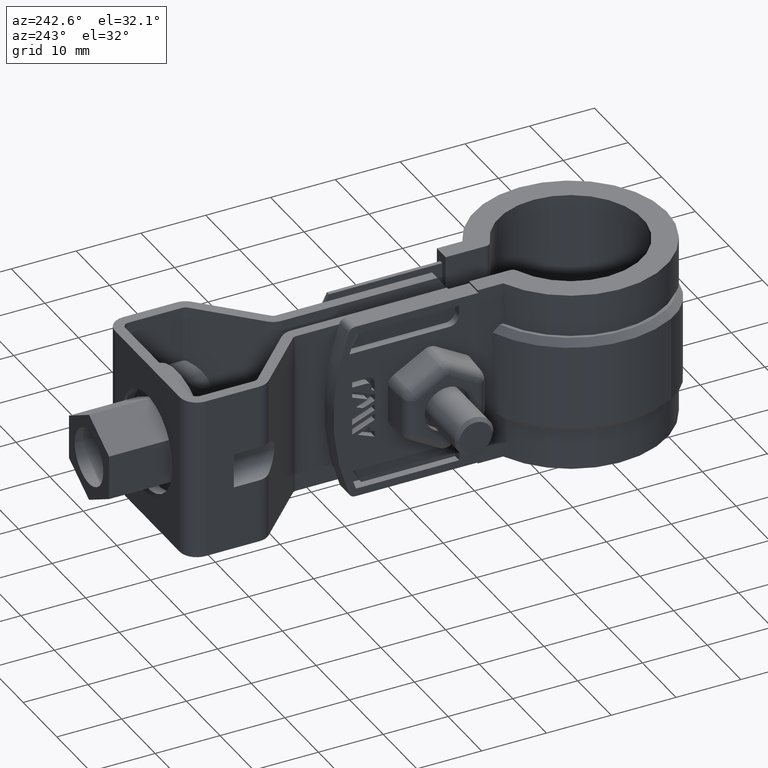
[diagram: clean part render]
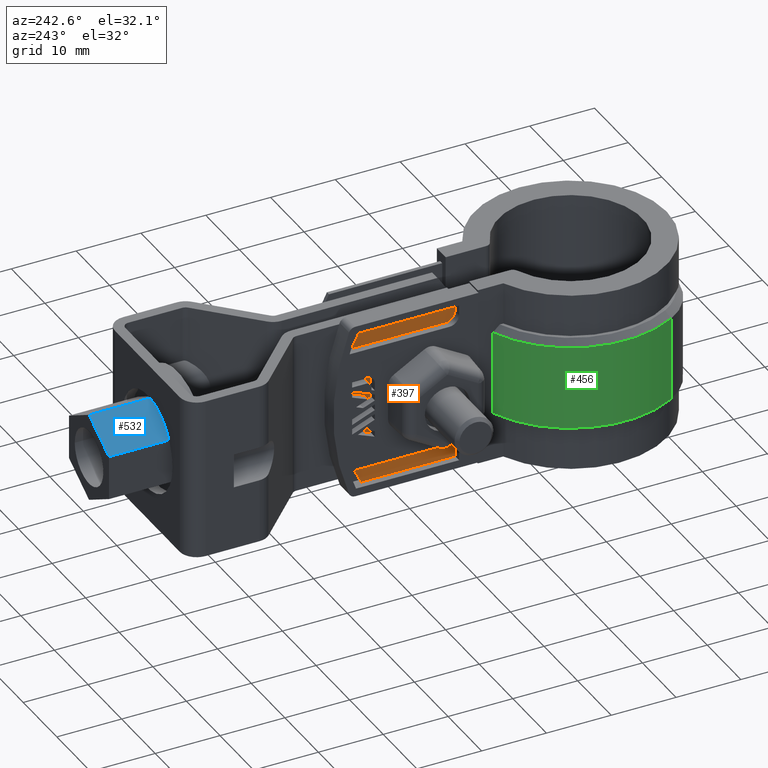
[diagram: same view with three faces highlighted in distinct colors, each labeled with its STEP entity id]
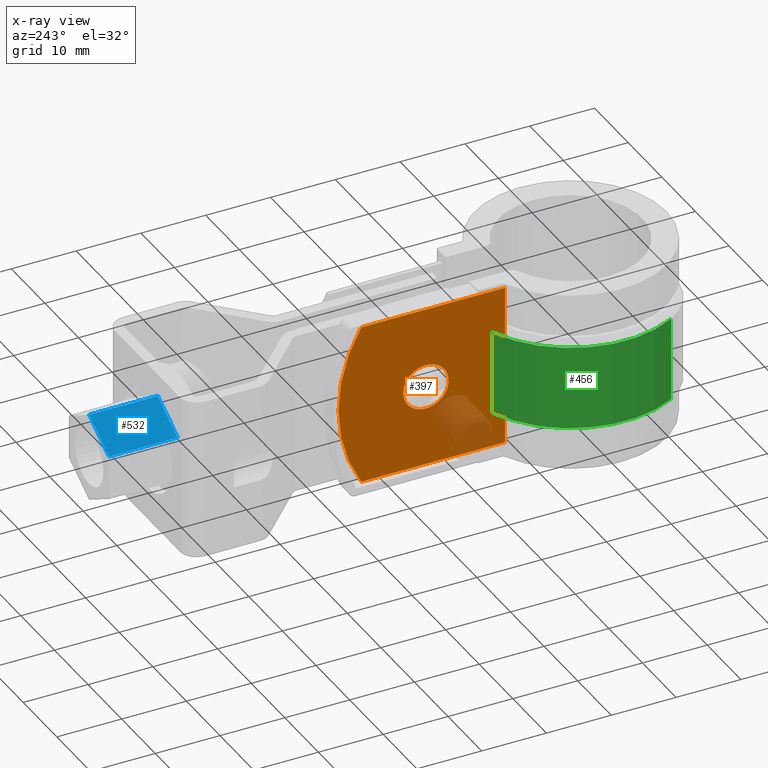
[diagram: x-ray of the same camera — body ghosted, the three highlighted faces saturated]
A machine part, auxiliary view with three faces highlighted in distinct colors.
The next image is the same camera in x-ray (body ghosted, the three faces saturated) — at least one of them is partly hidden behind the body in this view.
Their STEP definitions:

[orange] entity #397 — the highlighted planar face has unit normal (1, -0, 0).
#397 = ADVANCED_FACE( '', ( #761, #762 ), #763, .F. );
#761 = FACE_BOUND( '', #1605, .T. );
#762 = FACE_OUTER_BOUND( '', #1606, .T. );
#763 = PLANE( '', #1607 );
#1605 = EDGE_LOOP( '', ( #3385 ) );
#1606 = EDGE_LOOP( '', ( #3386, #3387, #3388, #3389, #3390, #3391 ) );
#1607 = AXIS2_PLACEMENT_3D( '', #3392, #3393, #3394 );
#3385 = ORIENTED_EDGE( '', *, *, #6421, .F. );
#3386 = ORIENTED_EDGE( '', *, *, #6419, .F. );
#3387 = ORIENTED_EDGE( '', *, *, #6423, .F. );
#3388 = ORIENTED_EDGE( '', *, *, #6311, .F. );
#3389 = ORIENTED_EDGE( '', *, *, #6360, .F. );
#3390 = ORIENTED_EDGE( '', *, *, #6352, .T. );
#3391 = ORIENTED_EDGE( '', *, *, #6422, .F. );
#3392 = CARTESIAN_POINT( '', ( -5.10000000000000, 38.4580146622353, 0.000000000000000 ) );
#3393 = DIRECTION( '', ( 1.00000000000000, -6.12303176911189E-017, 0.000000000000000 ) );
#3394 = DIRECTION( '', ( -6.12303176911189E-017, -1.00000000000000, 0.000000000000000 ) );
#6311 = EDGE_CURVE( '', #7236, #7239, #7240, .T. );
#6352 = EDGE_CURVE( '', #7312, #7310, #7313, .T. );
#6360 = EDGE_CURVE( '', #7312, #7236, #7326, .T. );
#6419 = EDGE_CURVE( '', #7416, #7414, #7418, .T. );
#6421 = EDGE_CURVE( '', #7421, #7421, #7422, .F. );
#6422 = EDGE_CURVE( '', #7414, #7310, #7423, .T. );
#6423 = EDGE_CURVE( '', #7239, #7416, #7424, .T. );
#7236 = VERTEX_POINT( '', #8847 );
#7239 = VERTEX_POINT( '', #8851 );
#7240 = LINE( '', #8852, #8853 );
#7310 = VERTEX_POINT( '', #9178 );
#7312 = VERTEX_POINT( '', #9180 );
#7313 = LINE( '', #9181, #9182 );
#7326 = CIRCLE( '', #9198, 24.0000000000000 );
#7414 = VERTEX_POINT( '', #9597 );
#7416 = VERTEX_POINT( '', #9612 );
#7418 = B_SPLINE_CURVE_WITH_KNOTS( '', 3, ( #9627, #9628, #9629, #9630, #9631, #9632, #9633, #9634, #9635, #9636, #9637, #9638, #9639 ), .UNSPECIFIED., .F., .F., ( 4, 2, 2, 1, 2, 2, 4 ), ( 9.34177181294034E-018, 0.00154494556300113, 0.00231741834450169, 0.00308989112600226, 0.00386236390750282, 0.00463483668900338, 0.00617978225200451 ), .UNSPECIFIED. );
#7421 = VERTEX_POINT( '', #9642 );
#7422 = CIRCLE( '', #9643, 3.50000000000000 );
#7423 = LINE( '', #9644, #9645 );
#7424 = LINE( '', #9646, #9647 );
#8847 = CARTESIAN_POINT( '', ( -5.10000000000000, 34.9458159107832, 3.32611767591081E-031 ) );
#8851 = CARTESIAN_POINT( '', ( -5.10000000000000, 12.7485724691041, 0.000000000000000 ) );
#8852 = CARTESIAN_POINT( '', ( -5.10000000000000, 38.4580146622353, 0.000000000000000 ) );
#8853 = VECTOR( '', #12307, 1000.00000000000 );
#9178 = CARTESIAN_POINT( '', ( -5.10000000000000, 12.7485724691041, -25.0000000000000 ) );
#9180 = CARTESIAN_POINT( '', ( -5.10000000000000, 34.9458159107832, -25.0000000000000 ) );
#9181 = CARTESIAN_POINT( '', ( -5.10000000000000, 38.4580146622353, -25.0000000000000 ) );
#9182 = VECTOR( '', #12353, 1000.00000000000 );
#9198 = AXIS2_PLACEMENT_3D( '', #12369, #12370, #12371 );
#9597 = CARTESIAN_POINT( '', ( -5.10000000000000, 12.7485724691041, -15.4837951654384 ) );
#9612 = CARTESIAN_POINT( '', ( -5.10000000000000, 12.7485724691041, -9.51620483456162 ) );
#9627 = CARTESIAN_POINT( '', ( -5.10000000000000, 12.7485724691041, -9.51620483456161 ) );
#9628 = CARTESIAN_POINT( '', ( -5.10000000000000, 12.9866172798646, -9.97975154442481 ) );
#9629 = CARTESIAN_POINT( '', ( -5.10000000000000, 13.1665509757478, -10.4626251012847 ) );
#9630 = CARTESIAN_POINT( '', ( -5.10000000000000, 13.3513480558411, -11.2152395161968 ) );
#9631 = CARTESIAN_POINT( '', ( -5.09999999999999, 13.3986927600009, -11.4726051935498 ) );
#9632 = CARTESIAN_POINT( '', ( -5.09999999999999, 13.4614587026653, -11.9863195546137 ) );
#9633 = CARTESIAN_POINT( '', ( -5.09999999999985, 13.4929646435615, -12.4997878679591 ) );
#9634 = CARTESIAN_POINT( '', ( -5.09999999999998, 13.4615135256454, -13.0127606458019 ) );
#9635 = CARTESIAN_POINT( '', ( -5.09999999999999, 13.3989828798544, -13.5254887964375 ) );
#9636 = CARTESIAN_POINT( '', ( -5.10000000000000, 13.3517303698018, -13.7829791713213 ) );
#9637 = CARTESIAN_POINT( '', ( -5.10000000000000, 13.1667583011510, -14.5369773325105 ) );
#9638 = CARTESIAN_POINT( '', ( -5.10000000000000, 12.9866118316508, -15.0202590649289 ) );
#9639 = CARTESIAN_POINT( '', ( -5.10000000000000, 12.7485724691041, -15.4837951654384 ) );
#9642 = CARTESIAN_POINT( '', ( -5.10000000000000, 28.4580146622353, -12.5000000000000 ) );
#9643 = AXIS2_PLACEMENT_3D( '', #12428, #12429, #12430 );
#9644 = CARTESIAN_POINT( '', ( -5.10000000000000, 12.7485724691041, 0.000000000000000 ) );
#9645 = VECTOR( '', #12431, 1000.00000000000 );
#9646 = CARTESIAN_POINT( '', ( -5.10000000000000, 12.7485724691041, 0.000000000000000 ) );
#9647 = VECTOR( '', #12432, 1000.00000000000 );
#12307 = DIRECTION( '', ( -6.12303176911189E-017, -1.00000000000000, 0.000000000000000 ) );
#12353 = DIRECTION( '', ( -6.12303176911189E-017, -1.00000000000000, 0.000000000000000 ) );
#12369 = CARTESIAN_POINT( '', ( -5.10000000000000, 14.4580146622353, -12.5000000000000 ) );
#12370 = DIRECTION( '', ( 1.00000000000000, -6.12303176911189E-017, 0.000000000000000 ) );
#12371 = DIRECTION( '', ( 6.12303176911189E-017, 1.00000000000000, 0.000000000000000 ) );
#12428 = CARTESIAN_POINT( '', ( -5.10000000000000, 24.9580146622353, -12.5000000000000 ) );
#12429 = DIRECTION( '', ( 1.00000000000000, -6.12303176911189E-017, 0.000000000000000 ) );
#12430 = DIRECTION( '', ( 6.12303176911189E-017, 1.00000000000000, 0.000000000000000 ) );
#12431 = DIRECTION( '', ( 0.000000000000000, 0.000000000000000, -1.00000000000000 ) );
#12432 = DIRECTION( '', ( 0.000000000000000, 0.000000000000000, -1.00000000000000 ) );

[blue] entity #532 — the highlighted planar face has unit normal (0.5, 0, -0.866).
#532 = ADVANCED_FACE( '', ( #1049 ), #1050, .F. );
#1049 = FACE_OUTER_BOUND( '', #2133, .T. );
#1050 = PLANE( '', #2134 );
#2133 = EDGE_LOOP( '', ( #5002, #5003, #5004, #5005 ) );
#2134 = AXIS2_PLACEMENT_3D( '', #5006, #5007, #5008 );
#5002 = ORIENTED_EDGE( '', *, *, #6776, .T. );
#5003 = ORIENTED_EDGE( '', *, *, #6789, .F. );
#5004 = ORIENTED_EDGE( '', *, *, #6790, .F. );
#5005 = ORIENTED_EDGE( '', *, *, #6787, .T. );
#5006 = CARTESIAN_POINT( '', ( -5.94999999980475, 74.2980146706921, -9.06476588437222 ) );
#5007 = DIRECTION( '', ( 0.500000000000663, 8.05036861353053E-011, -0.866025403784056 ) );
#5008 = DIRECTION( '', ( -0.866025403784056, 4.74644645868087E-011, -0.500000000000663 ) );
#6776 = EDGE_CURVE( '', #8010, #8008, #8011, .T. );
#6787 = EDGE_CURVE( '', #8029, #8010, #8030, .T. );
#6789 = EDGE_CURVE( '', #8032, #8008, #8033, .T. );
#6790 = EDGE_CURVE( '', #8029, #8032, #8034, .T. );
#8008 = VERTEX_POINT( '', #11150 );
#8010 = VERTEX_POINT( '', #11153 );
#8011 = LINE( '', #11154, #11155 );
#8029 = VERTEX_POINT( '', #11180 );
#8030 = LINE( '', #11181, #11182 );
#8032 = VERTEX_POINT( '', #11185 );
#8033 = LINE( '', #11186, #11187 );
#8034 = LINE( '', #11188, #11189 );
#11150 = CARTESIAN_POINT( '', ( 1.83572158008916E-010, 63.6980146703660, -5.62953178367996 ) );
#11153 = CARTESIAN_POINT( '', ( -5.94999999981379, 63.6980146706921, -9.06476588536280 ) );
#11154 = CARTESIAN_POINT( '', ( -5.94999999981380, 63.6980146706921, -9.06476588536279 ) );
#11155 = VECTOR( '', #12921, 1000.00000000000 );
#11180 = CARTESIAN_POINT( '', ( -5.94999999980475, 74.2980146706921, -9.06476588437223 ) );
#11181 = CARTESIAN_POINT( '', ( -5.94999999980475, 74.2980146706921, -9.06476588437223 ) );
#11182 = VECTOR( '', #12938, 1000.00000000000 );
#11185 = CARTESIAN_POINT( '', ( 1.92620201848593E-010, 74.2980146703660, -5.62953178268938 ) );
#11186 = CARTESIAN_POINT( '', ( 1.92620201848593E-010, 74.2980146703660, -5.62953178268938 ) );
#11187 = VECTOR( '', #12940, 1000.00000000000 );
#11188 = CARTESIAN_POINT( '', ( -5.94999999980475, 74.2980146706921, -9.06476588437222 ) );
#11189 = VECTOR( '', #12941, 1000.00000000000 );
#12921 = DIRECTION( '', ( 0.866025403784056, -4.74644645868087E-011, 0.500000000000663 ) );
#12938 = DIRECTION( '', ( -8.53589041478956E-013, -1.00000000000000, -9.34504695848685E-011 ) );
#12940 = DIRECTION( '', ( -8.53589041478956E-013, -1.00000000000000, -9.34504695848685E-011 ) );
#12941 = DIRECTION( '', ( 0.866025403784056, -4.74644645868087E-011, 0.500000000000663 ) );

[green] entity #456 — the highlighted cylindrical surface (partial cylindrical patch) has radius 16.355 mm, axis along (0, 0, -1).
#456 = ADVANCED_FACE( '', ( #883 ), #884, .T. );
#883 = FACE_OUTER_BOUND( '', #1967, .T. );
#884 = CYLINDRICAL_SURFACE( '', #1968, 16.3550000000000 );
#1967 = EDGE_LOOP( '', ( #4369, #4370, #4371, #4372 ) );
#1968 = AXIS2_PLACEMENT_3D( '', #4373, #4374, #4375 );
#4369 = ORIENTED_EDGE( '', *, *, #6444, .F. );
#4370 = ORIENTED_EDGE( '', *, *, #6615, .T. );
#4371 = ORIENTED_EDGE( '', *, *, #6612, .T. );
#4372 = ORIENTED_EDGE( '', *, *, #6616, .T. );
#4373 = CARTESIAN_POINT( '', ( 0.000000000000000, 0.000000000000000, -20.0000000000000 ) );
#4374 = DIRECTION( '', ( 0.000000000000000, 0.000000000000000, -1.00000000000000 ) );
#4375 = DIRECTION( '', ( -0.311831244267808, 0.950137503258550, 0.000000000000000 ) );
#6444 = EDGE_CURVE( '', #7458, #7460, #7461, .T. );
#6612 = EDGE_CURVE( '', #7742, #7743, #7744, .T. );
#6615 = EDGE_CURVE( '', #7458, #7742, #7747, .T. );
#6616 = EDGE_CURVE( '', #7743, #7460, #7748, .F. );
#7458 = VERTEX_POINT( '', #9695 );
#7460 = VERTEX_POINT( '', #9700 );
#7461 = LINE( '', #9701, #9702 );
#7742 = VERTEX_POINT( '', #10731 );
#7743 = VERTEX_POINT( '', #10732 );
#7744 = LINE( '', #10733, #10734 );
#7747 = CIRCLE( '', #10737, 16.3550000000000 );
#7748 = CIRCLE( '', #10738, 16.3550000000000 );
#9695 = CARTESIAN_POINT( '', ( -6.10000000000000, 15.1748484341690, -19.0000000000000 ) );
#9700 = CARTESIAN_POINT( '', ( -6.10000000000000, 15.1748484341690, -6.00000000000000 ) );
#9701 = CARTESIAN_POINT( '', ( -6.10000000000000, 15.1748484341690, -20.0000000000000 ) );
#9702 = VECTOR( '', #12462, 1000.00000000000 );
#10731 = CARTESIAN_POINT( '', ( -14.1597412067696, -8.18460469157254, -19.0000000000000 ) );
#10732 = CARTESIAN_POINT( '', ( -14.1597412067696, -8.18460469157254, -6.00000000000000 ) );
#10733 = CARTESIAN_POINT( '', ( -14.1597412067696, -8.18460469157254, -20.0000000000000 ) );
#10734 = VECTOR( '', #12657, 1000.00000000000 );
#10737 = AXIS2_PLACEMENT_3D( '', #12664, #12665, #12666 );
#10738 = AXIS2_PLACEMENT_3D( '', #12667, #12668, #12669 );
#12462 = DIRECTION( '', ( 0.000000000000000, 0.000000000000000, 1.00000000000000 ) );
#12657 = DIRECTION( '', ( 0.000000000000000, 0.000000000000000, 1.00000000000000 ) );
#12664 = CARTESIAN_POINT( '', ( 0.000000000000000, 0.000000000000000, -19.0000000000000 ) );
#12665 = DIRECTION( '', ( 0.000000000000000, 0.000000000000000, 1.00000000000000 ) );
#12666 = DIRECTION( '', ( 1.00000000000000, 0.000000000000000, 0.000000000000000 ) );
#12667 = CARTESIAN_POINT( '', ( 0.000000000000000, 0.000000000000000, -6.00000000000000 ) );
#12668 = DIRECTION( '', ( 0.000000000000000, 0.000000000000000, 1.00000000000000 ) );
#12669 = DIRECTION( '', ( 1.00000000000000, 0.000000000000000, 0.000000000000000 ) );